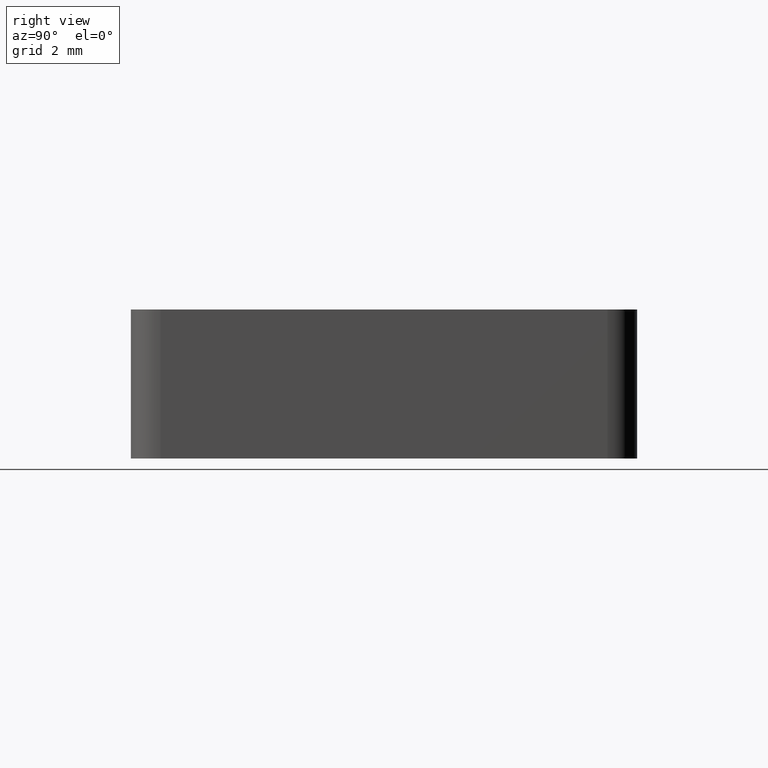
[diagram: clean part render]
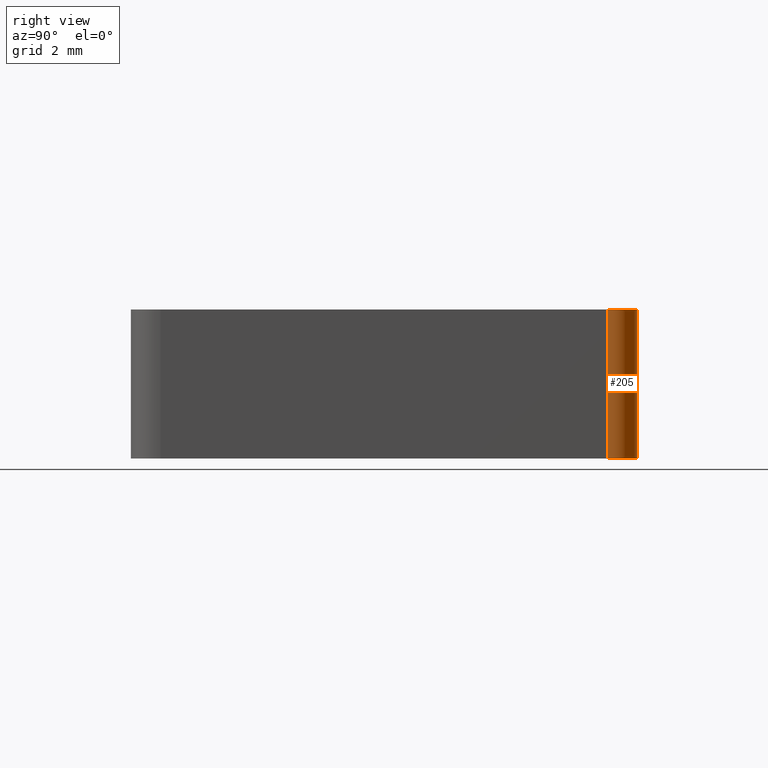
[diagram: same view with one face highlighted and labeled with its STEP entity id]
A machine part, right view. The second image highlights one B-rep face of the part: STEP entity #205.
In plain terms, the highlighted cylindrical surface (edge-blend (fillet) strip) has radius 1 mm, axis along (0, 0, -1).
Its self-contained STEP definition (entity closure, byte-faithful):
#33=FACE_OUTER_BOUND('',#46,.T.);
#46=EDGE_LOOP('',(#186,#187,#188,#189));
#57=LINE('',#341,#74);
#61=LINE('',#350,#78);
#74=VECTOR('',#274,5.);
#78=VECTOR('',#280,5.);
#83=CIRCLE('',#237,1.);
#87=CIRCLE('',#242,1.);
#102=VERTEX_POINT('',#338);
#103=VERTEX_POINT('',#340);
#105=VERTEX_POINT('',#346);
#107=VERTEX_POINT('',#349);
#121=EDGE_CURVE('',#102,#103,#57,.T.);
#125=EDGE_CURVE('',#105,#107,#61,.T.);
#128=EDGE_CURVE('',#103,#105,#83,.T.);
#132=EDGE_CURVE('',#107,#102,#87,.T.);
#186=ORIENTED_EDGE('',*,*,#128,.F.);
#187=ORIENTED_EDGE('',*,*,#121,.F.);
#188=ORIENTED_EDGE('',*,*,#132,.F.);
#189=ORIENTED_EDGE('',*,*,#125,.F.);
#194=CYLINDRICAL_SURFACE('',#249,1.);
#205=ADVANCED_FACE('',(#33),#194,.T.);
#237=AXIS2_PLACEMENT_3D('',#355,#285,#286);
#242=AXIS2_PLACEMENT_3D('',#360,#295,#296);
#249=AXIS2_PLACEMENT_3D('',#367,#309,#310);
#274=DIRECTION('',(0.,0.,1.));
#280=DIRECTION('',(0.,0.,-1.));
#285=DIRECTION('center_axis',(0.,0.,1.));
#286=DIRECTION('ref_axis',(1.,0.,0.));
#295=DIRECTION('center_axis',(0.,0.,-1.));
#296=DIRECTION('ref_axis',(1.,0.,0.));
#309=DIRECTION('center_axis',(0.,0.,-1.));
#310=DIRECTION('ref_axis',(-1.,0.,0.));
#338=CARTESIAN_POINT('',(8.49999999999999,7.50000000000001,-5.));
#340=CARTESIAN_POINT('',(8.49999999999999,7.50000000000001,0.));
#341=CARTESIAN_POINT('',(8.49999999999999,7.50000000000001,-5.));
#346=CARTESIAN_POINT('',(7.49999999999999,8.50000000000001,0.));
#349=CARTESIAN_POINT('',(7.49999999999999,8.50000000000001,-5.));
#350=CARTESIAN_POINT('',(7.49999999999999,8.50000000000001,0.));
#355=CARTESIAN_POINT('Origin',(7.49999999999999,7.50000000000001,0.));
#360=CARTESIAN_POINT('Origin',(7.49999999999999,7.50000000000001,-5.));
#367=CARTESIAN_POINT('Origin',(7.49999999999999,7.50000000000001,1.E-8));